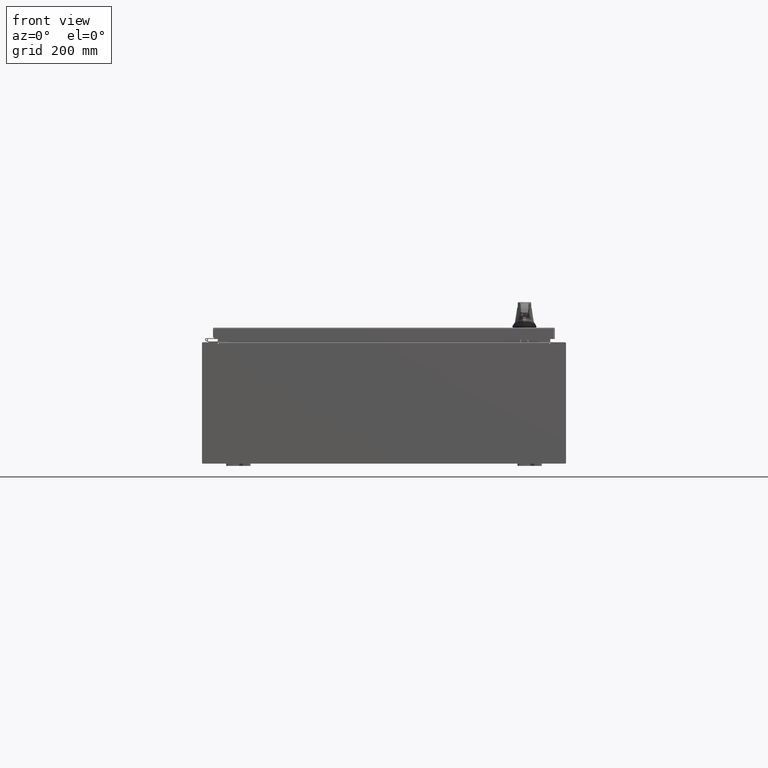
[diagram: clean part render]
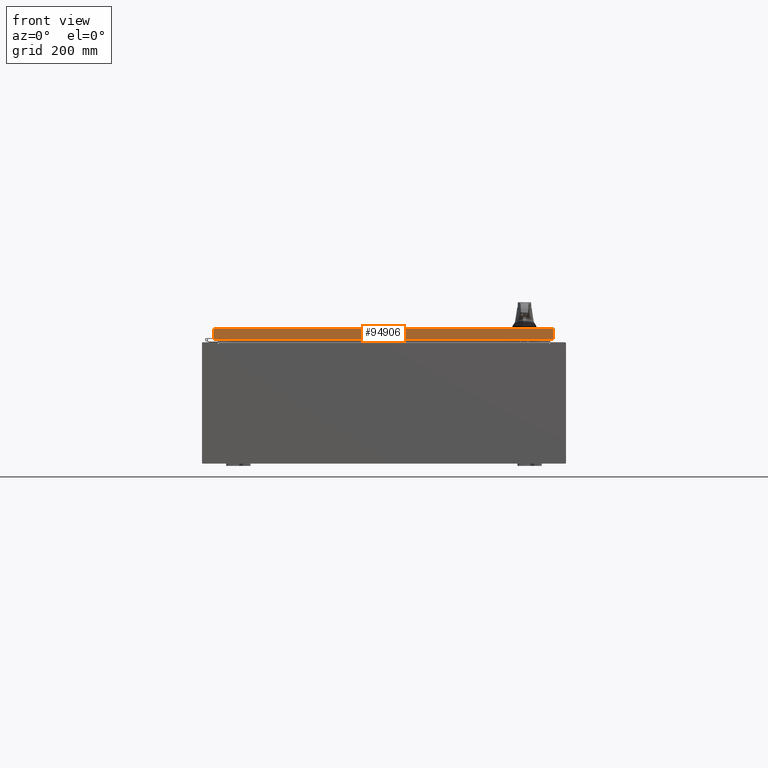
[diagram: same view with one face highlighted and labeled with its STEP entity id]
A machine part, front view. The second image highlights one B-rep face of the part: STEP entity #94906.
In plain terms, the highlighted planar face has unit normal (-0, 1, -0).
Its self-contained STEP definition (entity closure, byte-faithful):
#12146 = VERTEX_POINT ( 'NONE', #92206 ) ;
#17245 = VERTEX_POINT ( 'NONE', #98392 ) ;
#26871 = DIRECTION ( 'NONE',  ( -1.000000000000000000, 8.758115402030108600E-047, 1.261330583805776300E-016 ) ) ;
#35179 = DIRECTION ( 'NONE',  ( 1.000000000000000000, 6.388437403878902700E-031, -3.301709433786010000E-045 ) ) ;
#38063 = EDGE_LOOP ( 'NONE', ( #129844, #61889, #70920, #121050 ) ) ;
#40334 = VECTOR ( 'NONE', #66762, 39.37007874015748100 ) ;
#40824 = LINE ( 'NONE', #98694, #68068 ) ;
#41351 = EDGE_CURVE ( 'NONE', #99623, #17245, #122434, .T. ) ;
#43864 = PLANE ( 'NONE',  #114389 ) ;
#46514 = LINE ( 'NONE', #88047, #118904 ) ;
#52544 = EDGE_CURVE ( 'NONE', #130949, #17245, #40824, .T. ) ;
#54133 = DIRECTION ( 'NONE',  ( -6.388437403878901800E-031, 1.000000000000000000, -5.064839849203732200E-015 ) ) ;
#55367 = CARTESIAN_POINT ( 'NONE',  ( 13.98915786437626500, -23.09400000000000500, -0.9376999999999997600 ) ) ;
#56478 = CARTESIAN_POINT ( 'NONE',  ( -13.98915786437626700, -23.09400000000000100, 1.172282251335225800E-013 ) ) ;
#61889 = ORIENTED_EDGE ( 'NONE', *, *, #41351, .T. ) ;
#66762 = DIRECTION ( 'NONE',  ( 0.0000000000000000000, -5.064839849203732200E-015, -1.000000000000000000 ) ) ;
#68068 = VECTOR ( 'NONE', #26871, 39.37007874015748100 ) ;
#70920 = ORIENTED_EDGE ( 'NONE', *, *, #52544, .F. ) ;
#74342 = CARTESIAN_POINT ( 'NONE',  ( 1.475345734051793700E-029, -23.09400000000000100, 1.172282251335225800E-013 ) ) ;
#74881 = VECTOR ( 'NONE', #35179, 39.37007874015748100 ) ;
#88047 = CARTESIAN_POINT ( 'NONE',  ( 13.98915786437626500, -23.09400000000000100, -0.07469999999999962800 ) ) ;
#92206 = CARTESIAN_POINT ( 'NONE',  ( 13.98915786437626500, -23.09400000000000100, -0.08769999999999550400 ) ) ;
#94362 = CARTESIAN_POINT ( 'NONE',  ( -13.98915786437626500, -23.09400000000000100, -0.08769999999999550400 ) ) ;
#94906 = ADVANCED_FACE ( 'NONE', ( #105754 ), #43864, .F. ) ;
#96540 = EDGE_CURVE ( 'NONE', #99623, #12146, #102300, .T. ) ;
#98392 = CARTESIAN_POINT ( 'NONE',  ( -13.98915786437626500, -23.09400000000000500, -0.9376999999999962000 ) ) ;
#98423 = DIRECTION ( 'NONE',  ( -0.0000000000000000000, -5.064839849203732200E-015, -1.000000000000000000 ) ) ;
#98694 = CARTESIAN_POINT ( 'NONE',  ( 14.07799999999999800, -23.09400000000000500, -0.9376999999999997600 ) ) ;
#99623 = VERTEX_POINT ( 'NONE', #94362 ) ;
#102300 = LINE ( 'NONE', #107028, #74881 ) ;
#105475 = EDGE_CURVE ( 'NONE', #12146, #130949, #46514, .T. ) ;
#105754 = FACE_OUTER_BOUND ( 'NONE', #38063, .T. ) ;
#107028 = CARTESIAN_POINT ( 'NONE',  ( 14.07799999999999800, -23.09400000000000100, -0.08769999999999550400 ) ) ;
#114389 = AXIS2_PLACEMENT_3D ( 'NONE', #74342, #54133, #126150 ) ;
#118904 = VECTOR ( 'NONE', #98423, 39.37007874015748100 ) ;
#121050 = ORIENTED_EDGE ( 'NONE', *, *, #105475, .F. ) ;
#122434 = LINE ( 'NONE', #56478, #40334 ) ;
#126150 = DIRECTION ( 'NONE',  ( 0.0000000000000000000, 5.064839849203732200E-015, 1.000000000000000000 ) ) ;
#129844 = ORIENTED_EDGE ( 'NONE', *, *, #96540, .F. ) ;
#130949 = VERTEX_POINT ( 'NONE', #55367 ) ;